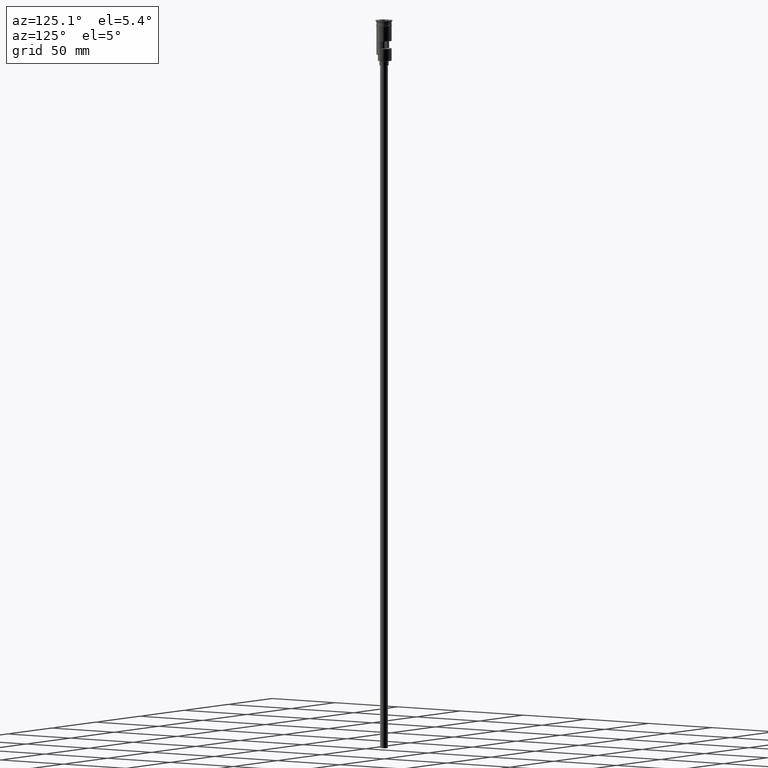
[diagram: clean part render]
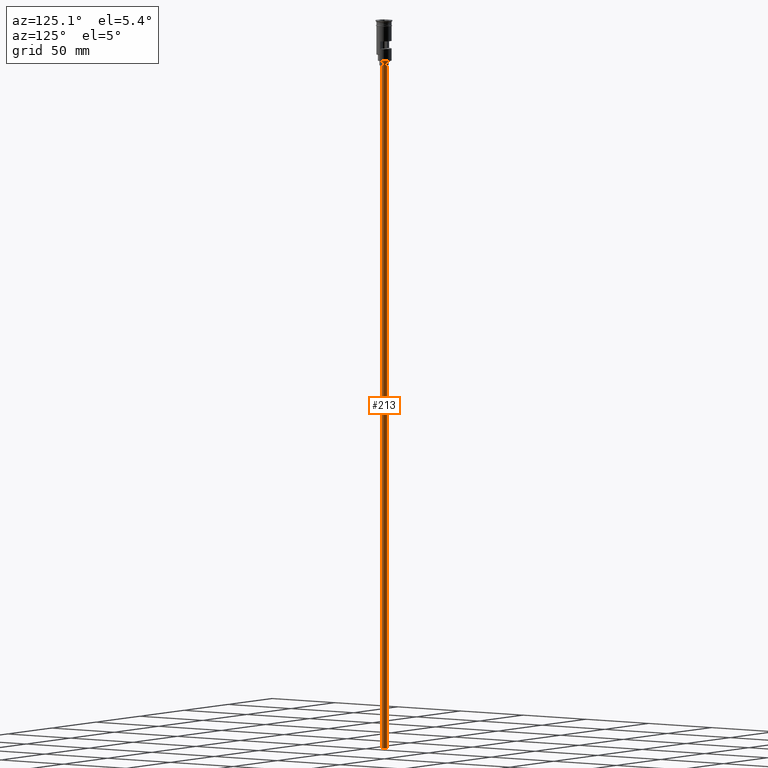
[diagram: same view with one face highlighted and labeled with its STEP entity id]
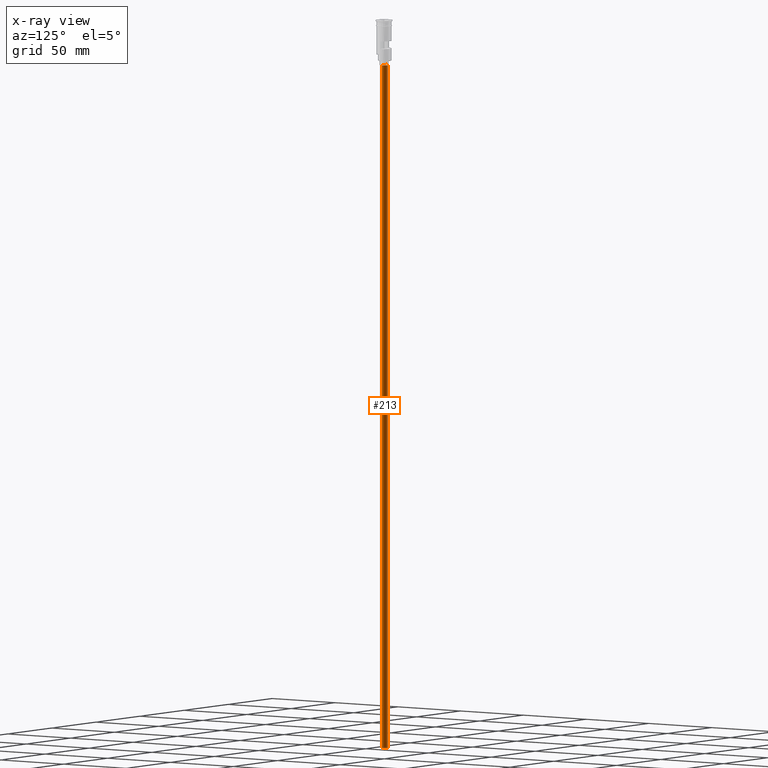
[diagram: x-ray of the same camera — body ghosted, the highlighted face saturated]
A machine part, auxiliary view. The second image highlights one B-rep face of the part: STEP entity #213.
The next image is the same camera in x-ray: the body ghosted, the highlighted face saturated — about 0% of this face is hidden behind the body in this view.
In plain terms, the highlighted cylindrical surface (edge-blend (fillet) strip) has radius 2.5 mm, axis along (-0, -0, 1).
Its self-contained STEP definition (entity closure, byte-faithful):
#3 = DIRECTION ( 'NONE',  ( 0.000000000000000000, 0.000000000000000000, -1.000000000000000000 ) ) ;
#17 = EDGE_CURVE ( 'NONE', #172, #376, #383, .T. ) ;
#57 = CARTESIAN_POINT ( 'NONE',  ( 2.500000000000000000, 0.000000000000000000, -476.5000000000000568 ) ) ;
#162 = VERTEX_POINT ( 'NONE', #646 ) ;
#172 = VERTEX_POINT ( 'NONE', #57 ) ;
#213 = ADVANCED_FACE ( 'NONE', ( #215 ), #701, .T. ) ;
#215 = FACE_OUTER_BOUND ( 'NONE', #916, .T. ) ;
#222 = DIRECTION ( 'NONE',  ( -0.000000000000000000, -0.000000000000000000, 1.000000000000000000 ) ) ;
#254 = CARTESIAN_POINT ( 'NONE',  ( 0.000000000000000000, 0.000000000000000000, -29.50000000000000000 ) ) ;
#372 = ORIENTED_EDGE ( 'NONE', *, *, #938, .F. ) ;
#376 = VERTEX_POINT ( 'NONE', #1577 ) ;
#383 = LINE ( 'NONE', #1598, #491 ) ;
#491 = VECTOR ( 'NONE', #222, 1000.000000000000000 ) ;
#556 = ORIENTED_EDGE ( 'NONE', *, *, #17, .F. ) ;
#641 = DIRECTION ( 'NONE',  ( 0.000000000000000000, 0.000000000000000000, -1.000000000000000000 ) ) ;
#646 = CARTESIAN_POINT ( 'NONE',  ( -2.500000000000000000, 3.061616997868383141E-16, -476.5000000000000568 ) ) ;
#663 = CARTESIAN_POINT ( 'NONE',  ( -2.500000000000000000, 3.061616997868383141E-16, -476.5000000000000568 ) ) ;
#701 = CYLINDRICAL_SURFACE ( 'NONE', #1226, 2.500000000000000000 ) ;
#713 = CIRCLE ( 'NONE', #1368, 2.500000000000000000 ) ;
#742 = DIRECTION ( 'NONE',  ( -1.000000000000000000, 0.000000000000000000, 0.000000000000000000 ) ) ;
#771 = DIRECTION ( 'NONE',  ( -0.000000000000000000, -0.000000000000000000, 1.000000000000000000 ) ) ;
#798 = DIRECTION ( 'NONE',  ( -0.000000000000000000, -0.000000000000000000, 1.000000000000000000 ) ) ;
#916 = EDGE_LOOP ( 'NONE', ( #372, #1482, #1377, #556 ) ) ;
#938 = EDGE_CURVE ( 'NONE', #162, #172, #988, .T. ) ;
#988 = CIRCLE ( 'NONE', #1472, 2.500000000000000000 ) ;
#1029 = LINE ( 'NONE', #663, #1471 ) ;
#1053 = CARTESIAN_POINT ( 'NONE',  ( 0.000000000000000000, 0.000000000000000000, -476.5000000000000568 ) ) ;
#1135 = CARTESIAN_POINT ( 'NONE',  ( 0.000000000000000000, 0.000000000000000000, -476.5000000000000568 ) ) ;
#1226 = AXIS2_PLACEMENT_3D ( 'NONE', #1053, #798, #1311 ) ;
#1311 = DIRECTION ( 'NONE',  ( 1.000000000000000000, 0.000000000000000000, 0.000000000000000000 ) ) ;
#1368 = AXIS2_PLACEMENT_3D ( 'NONE', #254, #3, #742 ) ;
#1377 = ORIENTED_EDGE ( 'NONE', *, *, #1433, .T. ) ;
#1433 = EDGE_CURVE ( 'NONE', #1575, #376, #713, .T. ) ;
#1471 = VECTOR ( 'NONE', #771, 1000.000000000000000 ) ;
#1472 = AXIS2_PLACEMENT_3D ( 'NONE', #1135, #641, #1510 ) ;
#1482 = ORIENTED_EDGE ( 'NONE', *, *, #1551, .T. ) ;
#1510 = DIRECTION ( 'NONE',  ( -1.000000000000000000, 0.000000000000000000, 0.000000000000000000 ) ) ;
#1527 = CARTESIAN_POINT ( 'NONE',  ( -2.500000000000000000, 3.061616997868383141E-16, -29.50000000000000000 ) ) ;
#1551 = EDGE_CURVE ( 'NONE', #162, #1575, #1029, .T. ) ;
#1575 = VERTEX_POINT ( 'NONE', #1527 ) ;
#1577 = CARTESIAN_POINT ( 'NONE',  ( 2.500000000000000000, 0.000000000000000000, -29.50000000000000000 ) ) ;
#1598 = CARTESIAN_POINT ( 'NONE',  ( 2.500000000000000000, 0.000000000000000000, -476.5000000000000568 ) ) ;